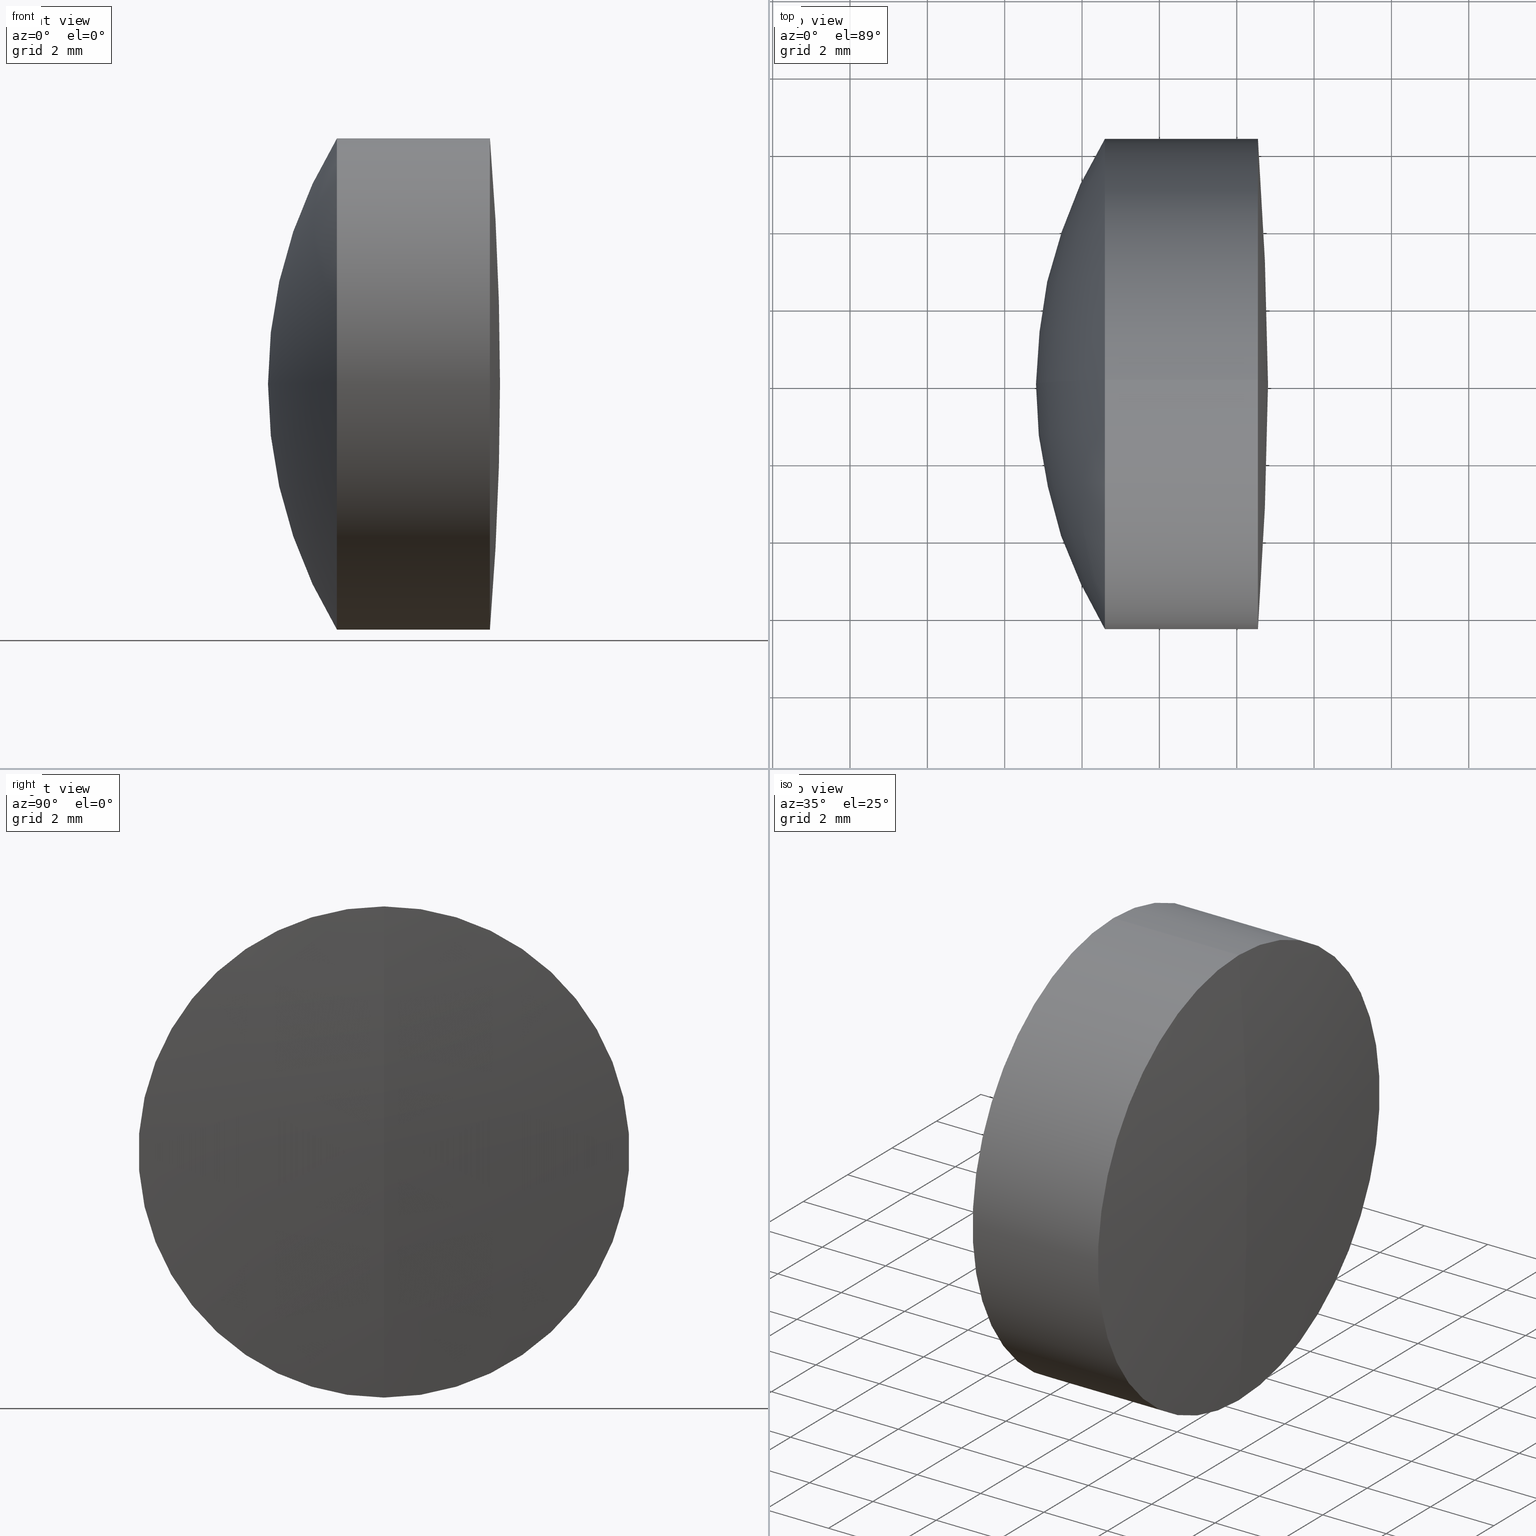
[diagram: canonical four-view strip — front | top / right | iso, engineering-drawing reading convention]
A machine part, canonical four-view strip (front | top / right | iso — engineering-drawing reading convention). The complete STEP part file that produces these views, byte-faithful:
ISO-10303-21;
HEADER;
FILE_DESCRIPTION (( 'STEP AP214' ),
    '1' );
FILE_NAME ('145109.STEP',
    '2019-05-29T08:06:37',
    ( 'user' ),
    ( '΢���й�' ),
    'SwSTEP 2.0',
    'SolidWorks 2016',
    '' );
FILE_SCHEMA (( 'AUTOMOTIVE_DESIGN' ));
ENDSEC;

DATA;
#1 = PRESENTATION_LAYER_ASSIGNMENT (  '', '', ( #13 ) ) ;
#2 = CARTESIAN_POINT ( 'NONE',  ( 272.5480355923398900, 0.0000000000000000000, 0.0000000000000000000 ) ) ;
#3 = EDGE_LOOP ( 'NONE', ( #149, #199, #21 ) ) ;
#4 = DIRECTION ( 'NONE',  ( 0.0000000000000000000, 0.0000000000000000000, 1.000000000000000000 ) ) ;
#5 = ORIENTED_EDGE ( 'NONE', *, *, #251, .T. ) ;
#6 = CIRCLE ( 'NONE', #218, 6.349999999999997000 ) ;
#7 = DIRECTION ( 'NONE',  ( 0.0000000000000000000, 0.0000000000000000000, -1.000000000000000000 ) ) ;
#8 = PRESENTATION_LAYER_ASSIGNMENT (  '', '', ( #345 ) ) ;
#9 = CIRCLE ( 'NONE', #308, 12.20000000000050000 ) ;
#10 = ORIENTED_EDGE ( 'NONE', *, *, #63, .F. ) ;
#11 =( NAMED_UNIT ( * ) SI_UNIT ( $, .STERADIAN. ) SOLID_ANGLE_UNIT ( ) );
#12 = FACE_OUTER_BOUND ( 'NONE', #194, .T. ) ;
#13 = STYLED_ITEM ( 'NONE', ( #88 ), #228 ) ;
#14 = VECTOR ( 'NONE', #337, 1000.000000000000000 ) ;
#15 = CARTESIAN_POINT ( 'NONE',  ( 260.7089566504702100, 0.0000000000000000000, -3.469446951953614200E-015 ) ) ;
#16 = COLOUR_RGB ( '',1.000000000000000000, 1.000000000000000000, 1.000000000000000000 ) ;
#17 = EDGE_CURVE ( 'NONE', #92, #322, #39, .T. ) ;
#18 = MECHANICAL_DESIGN_GEOMETRIC_PRESENTATION_REPRESENTATION (  '', ( #13 ), #147 ) ;
#19 = COLOUR_RGB ( '',1.000000000000000000, 1.000000000000000000, 1.000000000000000000 ) ;
#20 = UNCERTAINTY_MEASURE_WITH_UNIT (LENGTH_MEASURE( 1.000000000000000100E-005 ), #40, 'distance_accuracy_value', 'NONE');
#21 = ORIENTED_EDGE ( 'NONE', *, *, #210, .T. ) ;
#22 = FILL_AREA_STYLE ('',( #140 ) ) ;
#23 = CIRCLE ( 'NONE', #255, 6.349999999999996100 ) ;
#24 = CARTESIAN_POINT ( 'NONE',  ( 269.1964474457524300, 0.0000000000000000000, 0.0000000000000000000 ) ) ;
#25 = DIRECTION ( 'NONE',  ( 0.0000000000000000000, 0.0000000000000000000, 1.000000000000000000 ) ) ;
#26 = CARTESIAN_POINT ( 'NONE',  ( 269.1964474457524300, 0.0000000000000000000, 6.349999999999997000 ) ) ;
#27 = DIRECTION ( 'NONE',  ( 0.0000000000000000000, 1.000000000000000000, 0.0000000000000000000 ) ) ;
#28 = EDGE_CURVE ( 'NONE', #87, #33, #325, .T. ) ;
#29 = ORIENTED_EDGE ( 'NONE', *, *, #338, .F. ) ;
#30 = CARTESIAN_POINT ( 'NONE',  ( 279.0089566504702200, 0.0000000000000000000, -3.469447549560910600E-015 ) ) ;
#31 = EDGE_CURVE ( 'NONE', #125, #33, #180, .T. ) ;
#32 = ORIENTED_EDGE ( 'NONE', *, *, #242, .F. ) ;
#33 = VERTEX_POINT ( 'NONE', #49 ) ;
#34 = DIRECTION ( 'NONE',  ( 0.0000000000000000000, 0.0000000000000000000, 1.000000000000000000 ) ) ;
#35 =( GEOMETRIC_REPRESENTATION_CONTEXT ( 3 ) GLOBAL_UNCERTAINTY_ASSIGNED_CONTEXT ( ( #182 ) ) GLOBAL_UNIT_ASSIGNED_CONTEXT ( ( #334, #201, #11 ) ) REPRESENTATION_CONTEXT ( 'NONE', 'WORKASPACE' ) );
#36 = CARTESIAN_POINT ( 'NONE',  ( 124.5233095260452400, 7.776507174585689200E-016, -6.349999999999996100 ) ) ;
#37 = DIRECTION ( 'NONE',  ( 0.0000000000000000000, -1.000000000000000000, 0.0000000000000000000 ) ) ;
#38 = VECTOR ( 'NONE', #96, 1000.000000000000000 ) ;
#39 = CIRCLE ( 'NONE', #107, 6.349999999999996100 ) ;
#40 =( LENGTH_UNIT ( ) NAMED_UNIT ( * ) SI_UNIT ( .MILLI., .METRE. ) );
#41 = ADVANCED_FACE ( 'NONE', ( #281 ), #320, .T. ) ;
#42 = ADVANCED_FACE ( 'NONE', ( #204 ), #126, .T. ) ;
#43 = EDGE_CURVE ( 'NONE', #64, #163, #335, .T. ) ;
#44 = VECTOR ( 'NONE', #80, 1000.000000000000000 ) ;
#45 = CARTESIAN_POINT ( 'NONE',  ( 268.5917833294578300, 0.0000000000000000000, 0.0000000000000000000 ) ) ;
#46 = CYLINDRICAL_SURFACE ( 'NONE', #303, 6.349999999999996100 ) ;
#47 = EDGE_CURVE ( 'NONE', #134, #163, #129, .T. ) ;
#48 = MANIFOLD_SOLID_BREP ( '��ת1', #77 ) ;
#49 = CARTESIAN_POINT ( 'NONE',  ( 272.5480355923398900, 7.776507174585696100E-016, -6.350000000000002300 ) ) ;
#50 = ORIENTED_EDGE ( 'NONE', *, *, #209, .F. ) ;
#51 = DIRECTION ( 'NONE',  ( -1.000000000000000000, -0.0000000000000000000, -0.0000000000000000000 ) ) ;
#52 =( NAMED_UNIT ( * ) SI_UNIT ( $, .STERADIAN. ) SOLID_ANGLE_UNIT ( ) );
#53 = ORIENTED_EDGE ( 'NONE', *, *, #130, .T. ) ;
#54 = CARTESIAN_POINT ( 'NONE',  ( 195.4089566504702000, 0.0000000000000000000, 0.0000000000000000000 ) ) ;
#55 = ORIENTED_EDGE ( 'NONE', *, *, #146, .T. ) ;
#56 = DIRECTION ( 'NONE',  ( 0.0000000000000000000, 0.0000000000000000000, -1.000000000000000000 ) ) ;
#57 = CARTESIAN_POINT ( 'NONE',  ( 124.5233095260452400, 0.0000000000000000000, 0.0000000000000000000 ) ) ;
#58 = PRODUCT_RELATED_PRODUCT_CATEGORY ( 'part', '', ( #160 ) ) ;
#59 = SURFACE_STYLE_USAGE ( .BOTH. , #135 ) ;
#60 = EDGE_CURVE ( 'NONE', #248, #294, #330, .T. ) ;
#61 = DIRECTION ( 'NONE',  ( 0.0000000000000000000, 1.000000000000000000, 0.0000000000000000000 ) ) ;
#62 = DIRECTION ( 'NONE',  ( -0.0000000000000000000, 1.000000000000000000, 1.224646799147353200E-016 ) ) ;
#63 = EDGE_CURVE ( 'NONE', #200, #294, #9, .T. ) ;
#64 = VERTEX_POINT ( 'NONE', #186 ) ;
#65 = CARTESIAN_POINT ( 'NONE',  ( -0.5519199926577972300, 0.0000000000000000000, 0.0000000000000000000 ) ) ;
#66 = CARTESIAN_POINT ( 'NONE',  ( 269.1964474457524300, 7.776507174585689200E-016, -6.349999999999996100 ) ) ;
#67 = AXIS2_PLACEMENT_3D ( 'NONE', #158, #157, #154 ) ;
#68 = DIRECTION ( 'NONE',  ( -1.000000000000000000, -0.0000000000000000000, -0.0000000000000000000 ) ) ;
#69 = ADVANCED_FACE ( 'NONE', ( #148 ), #101, .T. ) ;
#70 = DIRECTION ( 'NONE',  ( 0.0000000000000000000, 1.000000000000000000, 0.0000000000000000000 ) ) ;
#71 = CIRCLE ( 'NONE', #290, 10.60000000000001600 ) ;
#72 = EDGE_LOOP ( 'NONE', ( #50, #113, #32 ) ) ;
#73 = SPHERICAL_SURFACE ( 'NONE', #117, 10.60000000000001600 ) ;
#74 = MECHANICAL_DESIGN_GEOMETRIC_PRESENTATION_REPRESENTATION (  '', ( #288 ), #173 ) ;
#75 = ORIENTED_EDGE ( 'NONE', *, *, #242, .T. ) ;
#76 = EDGE_CURVE ( 'NONE', #322, #248, #123, .T. ) ;
#77 = CLOSED_SHELL ( 'NONE', ( #42, #176, #124, #297, #69, #299 ) ) ;
#78 = EDGE_LOOP ( 'NONE', ( #153, #53, #301 ) ) ;
#79 = DIRECTION ( 'NONE',  ( 0.0000000000000000000, 0.0000000000000000000, 1.000000000000000000 ) ) ;
#80 = DIRECTION ( 'NONE',  ( -1.000000000000000000, -0.0000000000000000000, -0.0000000000000000000 ) ) ;
#81 = CARTESIAN_POINT ( 'NONE',  ( 268.5917833294578300, 7.776507174585689200E-016, -6.349999999999999600 ) ) ;
#82 = AXIS2_PLACEMENT_3D ( 'NONE', #215, #287, #262 ) ;
#83 = DIRECTION ( 'NONE',  ( 0.0000000000000000000, 0.0000000000000000000, 1.000000000000000000 ) ) ;
#84 = DIRECTION ( 'NONE',  ( 0.0000000000000000000, 0.0000000000000000000, 1.000000000000000000 ) ) ;
#85 = AXIS2_PLACEMENT_3D ( 'NONE', #2, #231, #111 ) ;
#86 = MANIFOLD_SOLID_BREP ( '��ת3', #223 ) ;
#87 = VERTEX_POINT ( 'NONE', #161 ) ;
#88 = PRESENTATION_STYLE_ASSIGNMENT (( #177 ) ) ;
#89 = CARTESIAN_POINT ( 'NONE',  ( 269.1964474457524300, 7.776507174585689200E-016, -6.350000000000000500 ) ) ;
#90 = APPLICATION_CONTEXT ( 'automotive_design' ) ;
#91 = DIRECTION ( 'NONE',  ( 0.0000000000000000000, -1.000000000000000000, 0.0000000000000000000 ) ) ;
#92 = VERTEX_POINT ( 'NONE', #289 ) ;
#93 = AXIS2_PLACEMENT_3D ( 'NONE', #321, #62, #141 ) ;
#94 = DIRECTION ( 'NONE',  ( -1.000000000000000000, -0.0000000000000000000, -0.0000000000000000000 ) ) ;
#95 = ADVANCED_FACE ( 'NONE', ( #239 ), #98, .F. ) ;
#96 = DIRECTION ( 'NONE',  ( -1.000000000000000000, -0.0000000000000000000, -0.0000000000000000000 ) ) ;
#97 = FILL_AREA_STYLE ('',( #236 ) ) ;
#98 = SPHERICAL_SURFACE ( 'NONE', #341, 10.60000000000001600 ) ;
#99 = CIRCLE ( 'NONE', #270, 6.349999999999996100 ) ;
#100 = EDGE_CURVE ( 'NONE', #33, #87, #293, .T. ) ;
#101 = CYLINDRICAL_SURFACE ( 'NONE', #235, 6.349999999999996100 ) ;
#102 = AXIS2_PLACEMENT_3D ( 'NONE', #254, #27, #276 ) ;
#103 = EDGE_LOOP ( 'NONE', ( #144, #266, #105 ) ) ;
#104 = EDGE_CURVE ( 'NONE', #64, #134, #71, .T. ) ;
#105 = ORIENTED_EDGE ( 'NONE', *, *, #47, .T. ) ;
#106 = LINE ( 'NONE', #213, #38 ) ;
#107 = AXIS2_PLACEMENT_3D ( 'NONE', #137, #94, #171 ) ;
#108 = CARTESIAN_POINT ( 'NONE',  ( 269.1964474457524300, 0.0000000000000000000, 0.0000000000000000000 ) ) ;
#109 = VERTEX_POINT ( 'NONE', #196 ) ;
#110 =( NAMED_UNIT ( * ) SI_UNIT ( $, .STERADIAN. ) SOLID_ANGLE_UNIT ( ) );
#111 = DIRECTION ( 'NONE',  ( 0.0000000000000000000, 0.0000000000000000000, 1.000000000000000000 ) ) ;
#112 = CARTESIAN_POINT ( 'NONE',  ( 272.5480355923398900, 0.0000000000000000000, 0.0000000000000000000 ) ) ;
#113 = ORIENTED_EDGE ( 'NONE', *, *, #155, .T. ) ;
#114 = AXIS2_PLACEMENT_3D ( 'NONE', #30, #285, #292 ) ;
#115 = CARTESIAN_POINT ( 'NONE',  ( 279.0089566504702200, 0.0000000000000000000, -3.469447549560910600E-015 ) ) ;
#116 = ORIENTED_EDGE ( 'NONE', *, *, #155, .F. ) ;
#117 = AXIS2_PLACEMENT_3D ( 'NONE', #184, #316, #84 ) ;
#118 = APPLICATION_PROTOCOL_DEFINITION ( 'draft international standard', 'automotive_design', 1998, #90 ) ;
#119 = ADVANCED_FACE ( 'NONE', ( #226 ), #167, .T. ) ;
#120 = EDGE_LOOP ( 'NONE', ( #219, #169, #317, #127 ) ) ;
#121 = CIRCLE ( 'NONE', #275, 10.60000000000001600 ) ;
#122 = PRESENTATION_LAYER_ASSIGNMENT (  '', '', ( #288 ) ) ;
#123 = LINE ( 'NONE', #36, #300 ) ;
#124 = ADVANCED_FACE ( 'NONE', ( #12 ), #159, .T. ) ;
#125 = VERTEX_POINT ( 'NONE', #136 ) ;
#126 = SPHERICAL_SURFACE ( 'NONE', #179, 10.60000000000001600 ) ;
#127 = ORIENTED_EDGE ( 'NONE', *, *, #146, .F. ) ;
#128 = DIRECTION ( 'NONE',  ( -0.0000000000000000000, 1.000000000000000000, 1.224646799147353200E-016 ) ) ;
#129 = CIRCLE ( 'NONE', #319, 6.349999999999997000 ) ;
#130 = EDGE_CURVE ( 'NONE', #248, #200, #229, .T. ) ;
#131 = CARTESIAN_POINT ( 'NONE',  ( 269.1964474457524300, 0.0000000000000000000, 0.0000000000000000000 ) ) ;
#132 = MECHANICAL_DESIGN_GEOMETRIC_PRESENTATION_REPRESENTATION (  '', ( #345 ), #206 ) ;
#133 = ORIENTED_EDGE ( 'NONE', *, *, #100, .T. ) ;
#134 = VERTEX_POINT ( 'NONE', #26 ) ;
#135 = SURFACE_SIDE_STYLE ('',( #139 ) ) ;
#136 = CARTESIAN_POINT ( 'NONE',  ( 272.8089566504702400, 0.0000000000000000000, 4.739383112700257000E-015 ) ) ;
#137 = CARTESIAN_POINT ( 'NONE',  ( 269.1964474457524300, 0.0000000000000000000, 0.0000000000000000000 ) ) ;
#138 = EDGE_CURVE ( 'NONE', #92, #200, #106, .T. ) ;
#139 = SURFACE_STYLE_FILL_AREA ( #343 ) ;
#140 = FILL_AREA_STYLE_COLOUR ( '', #16 ) ;
#141 = DIRECTION ( 'NONE',  ( 0.0000000000000000000, -1.224646799147353200E-016, 1.000000000000000000 ) ) ;
#142 = CARTESIAN_POINT ( 'NONE',  ( -0.5519199926577972300, 0.0000000000000000000, 0.0000000000000000000 ) ) ;
#143 = SURFACE_SIDE_STYLE ('',( #305 ) ) ;
#144 = ORIENTED_EDGE ( 'NONE', *, *, #43, .F. ) ;
#145 = SPHERICAL_SURFACE ( 'NONE', #67, 77.39999999999999100 ) ;
#146 = EDGE_CURVE ( 'NONE', #87, #134, #314, .T. ) ;
#147 =( GEOMETRIC_REPRESENTATION_CONTEXT ( 3 ) GLOBAL_UNCERTAINTY_ASSIGNED_CONTEXT ( ( #20 ) ) GLOBAL_UNIT_ASSIGNED_CONTEXT ( ( #40, #311, #52 ) ) REPRESENTATION_CONTEXT ( 'NONE', 'WORKASPACE' ) );
#148 = FACE_OUTER_BOUND ( 'NONE', #208, .T. ) ;
#149 = ORIENTED_EDGE ( 'NONE', *, *, #104, .F. ) ;
#150 = CIRCLE ( 'NONE', #312, 10.60000000000001600 ) ;
#151 = CARTESIAN_POINT ( 'NONE',  ( -0.5519199926577972300, 7.776507174585692200E-016, -6.349999999999999600 ) ) ;
#152 = FACE_OUTER_BOUND ( 'NONE', #227, .T. ) ;
#153 = ORIENTED_EDGE ( 'NONE', *, *, #60, .F. ) ;
#154 = DIRECTION ( 'NONE',  ( 0.0000000000000000000, 0.0000000000000000000, 1.000000000000000000 ) ) ;
#155 = EDGE_CURVE ( 'NONE', #109, #92, #150, .T. ) ;
#156 = DIRECTION ( 'NONE',  ( 0.0000000000000000000, 0.0000000000000000000, 1.000000000000000000 ) ) ;
#157 = DIRECTION ( 'NONE',  ( 0.0000000000000000000, 1.000000000000000000, 0.0000000000000000000 ) ) ;
#158 = CARTESIAN_POINT ( 'NONE',  ( 195.4089566504702000, 0.0000000000000000000, 0.0000000000000000000 ) ) ;
#159 = SPHERICAL_SURFACE ( 'NONE', #324, 12.20000000000050000 ) ;
#160 = PRODUCT ( '145109', '145109', '', ( #272 ) ) ;
#161 = CARTESIAN_POINT ( 'NONE',  ( 272.5480355923398900, 0.0000000000000000000, 6.350000000000002300 ) ) ;
#162 = DIRECTION ( 'NONE',  ( -1.000000000000000000, -0.0000000000000000000, -0.0000000000000000000 ) ) ;
#163 = VERTEX_POINT ( 'NONE', #89 ) ;
#164 = SPHERICAL_SURFACE ( 'NONE', #188, 10.60000000000001600 ) ;
#165 = SURFACE_STYLE_FILL_AREA ( #97 ) ;
#166 = DIRECTION ( 'NONE',  ( 0.0000000000000000000, 1.000000000000000000, 0.0000000000000000000 ) ) ;
#167 = CYLINDRICAL_SURFACE ( 'NONE', #333, 6.349999999999999600 ) ;
#168 = DIRECTION ( 'NONE',  ( 0.0000000000000000000, 0.0000000000000000000, 1.000000000000000000 ) ) ;
#169 = ORIENTED_EDGE ( 'NONE', *, *, #224, .T. ) ;
#170 = ADVANCED_FACE ( 'NONE', ( #203 ), #278, .T. ) ;
#171 = DIRECTION ( 'NONE',  ( 0.0000000000000000000, 0.0000000000000000000, 1.000000000000000000 ) ) ;
#172 = CARTESIAN_POINT ( 'NONE',  ( 260.7089566504702100, 0.0000000000000000000, -3.469446951953614200E-015 ) ) ;
#173 =( GEOMETRIC_REPRESENTATION_CONTEXT ( 3 ) GLOBAL_UNCERTAINTY_ASSIGNED_CONTEXT ( ( #225 ) ) GLOBAL_UNIT_ASSIGNED_CONTEXT ( ( #217, #253, #190 ) ) REPRESENTATION_CONTEXT ( 'NONE', 'WORKASPACE' ) );
#174 = ORIENTED_EDGE ( 'NONE', *, *, #76, .T. ) ;
#175 = AXIS2_PLACEMENT_3D ( 'NONE', #192, #267, #195 ) ;
#176 = ADVANCED_FACE ( 'NONE', ( #286 ), #46, .T. ) ;
#177 = SURFACE_STYLE_USAGE ( .BOTH. , #205 ) ;
#178 = DIRECTION ( 'NONE',  ( 0.0000000000000000000, 0.0000000000000000000, 1.000000000000000000 ) ) ;
#179 = AXIS2_PLACEMENT_3D ( 'NONE', #172, #70, #198 ) ;
#180 = CIRCLE ( 'NONE', #82, 77.39999999999999100 ) ;
#181 = ORIENTED_EDGE ( 'NONE', *, *, #100, .F. ) ;
#182 = UNCERTAINTY_MEASURE_WITH_UNIT (LENGTH_MEASURE( 1.000000000000000100E-005 ), #334, 'distance_accuracy_value', 'NONE');
#183 = DIRECTION ( 'NONE',  ( 0.0000000000000000000, -1.000000000000000000, 0.0000000000000000000 ) ) ;
#184 = CARTESIAN_POINT ( 'NONE',  ( 260.7089566504702100, 0.0000000000000000000, -3.469446951953614200E-015 ) ) ;
#185 = ORIENTED_EDGE ( 'NONE', *, *, #209, .T. ) ;
#186 = CARTESIAN_POINT ( 'NONE',  ( 271.3089566504702400, 0.0000000000000000000, -2.820384148405516000E-015 ) ) ;
#187 = CARTESIAN_POINT ( 'NONE',  ( 195.4089566504702000, 0.0000000000000000000, 0.0000000000000000000 ) ) ;
#188 = AXIS2_PLACEMENT_3D ( 'NONE', #216, #347, #79 ) ;
#189 = SPHERICAL_SURFACE ( 'NONE', #102, 12.20000000000050000 ) ;
#190 =( NAMED_UNIT ( * ) SI_UNIT ( $, .STERADIAN. ) SOLID_ANGLE_UNIT ( ) );
#191 = DIRECTION ( 'NONE',  ( 0.0000000000000000000, 0.0000000000000000000, 1.000000000000000000 ) ) ;
#192 = CARTESIAN_POINT ( 'NONE',  ( 268.5917833294578300, 0.0000000000000000000, 0.0000000000000000000 ) ) ;
#193 = DIRECTION ( 'NONE',  ( -1.000000000000000000, -0.0000000000000000000, -0.0000000000000000000 ) ) ;
#194 = EDGE_LOOP ( 'NONE', ( #250, #332, #10 ) ) ;
#195 = DIRECTION ( 'NONE',  ( 0.0000000000000000000, 0.0000000000000000000, 1.000000000000000000 ) ) ;
#196 = CARTESIAN_POINT ( 'NONE',  ( 271.3089566504702400, 0.0000000000000000000, -2.820384148405516000E-015 ) ) ;
#197 = DIRECTION ( 'NONE',  ( 1.000000000000000000, 0.0000000000000000000, 0.0000000000000000000 ) ) ;
#198 = DIRECTION ( 'NONE',  ( 0.0000000000000000000, 0.0000000000000000000, 1.000000000000000000 ) ) ;
#199 = ORIENTED_EDGE ( 'NONE', *, *, #43, .T. ) ;
#200 = VERTEX_POINT ( 'NONE', #211 ) ;
#201 =( NAMED_UNIT ( * ) PLANE_ANGLE_UNIT ( ) SI_UNIT ( $, .RADIAN. ) );
#202 = ORIENTED_EDGE ( 'NONE', *, *, #31, .F. ) ;
#203 = FACE_OUTER_BOUND ( 'NONE', #246, .T. ) ;
#204 = FACE_OUTER_BOUND ( 'NONE', #298, .T. ) ;
#205 = SURFACE_SIDE_STYLE ('',( #165 ) ) ;
#206 =( GEOMETRIC_REPRESENTATION_CONTEXT ( 3 ) GLOBAL_UNCERTAINTY_ASSIGNED_CONTEXT ( ( #295 ) ) GLOBAL_UNIT_ASSIGNED_CONTEXT ( ( #257, #346, #110 ) ) REPRESENTATION_CONTEXT ( 'NONE', 'WORKASPACE' ) );
#207 = DIRECTION ( 'NONE',  ( 0.0000000000000000000, 0.0000000000000000000, 1.000000000000000000 ) ) ;
#208 = EDGE_LOOP ( 'NONE', ( #234, #75, #336, #342 ) ) ;
#209 = EDGE_CURVE ( 'NONE', #109, #322, #121, .T. ) ;
#210 = EDGE_CURVE ( 'NONE', #163, #134, #6, .T. ) ;
#211 = CARTESIAN_POINT ( 'NONE',  ( 268.5917833294578300, 0.0000000000000000000, 6.349999999999996100 ) ) ;
#212 = FACE_OUTER_BOUND ( 'NONE', #103, .T. ) ;
#213 = CARTESIAN_POINT ( 'NONE',  ( 124.5233095260452400, 0.0000000000000000000, 6.349999999999996100 ) ) ;
#214 = FACE_OUTER_BOUND ( 'NONE', #78, .T. ) ;
#215 = CARTESIAN_POINT ( 'NONE',  ( 195.4089566504702000, 0.0000000000000000000, 0.0000000000000000000 ) ) ;
#216 = CARTESIAN_POINT ( 'NONE',  ( 260.7089566504702100, 0.0000000000000000000, -3.469446951953614200E-015 ) ) ;
#217 =( LENGTH_UNIT ( ) NAMED_UNIT ( * ) SI_UNIT ( .MILLI., .METRE. ) );
#218 = AXIS2_PLACEMENT_3D ( 'NONE', #108, #193, #306 ) ;
#219 = ORIENTED_EDGE ( 'NONE', *, *, #28, .T. ) ;
#220 = DIRECTION ( 'NONE',  ( 0.0000000000000000000, -1.000000000000000000, 0.0000000000000000000 ) ) ;
#221 = PRESENTATION_STYLE_ASSIGNMENT (( #59 ) ) ;
#222 = PRODUCT_DEFINITION_CONTEXT ( 'detailed design', #296, 'design' ) ;
#223 = CLOSED_SHELL ( 'NONE', ( #302, #119, #95, #291, #41, #170 ) ) ;
#224 = EDGE_CURVE ( 'NONE', #33, #163, #264, .T. ) ;
#225 = UNCERTAINTY_MEASURE_WITH_UNIT (LENGTH_MEASURE( 1.000000000000000100E-005 ), #217, 'distance_accuracy_value', 'NONE');
#226 = FACE_OUTER_BOUND ( 'NONE', #120, .T. ) ;
#227 = EDGE_LOOP ( 'NONE', ( #309, #240, #282 ) ) ;
#228 = ADVANCED_BREP_SHAPE_REPRESENTATION ( '145109', ( #48, #86, #230 ), #35 ) ;
#229 = CIRCLE ( 'NONE', #175, 6.349999999999996100 ) ;
#230 = AXIS2_PLACEMENT_3D ( 'NONE', #307, #191, #197 ) ;
#231 = DIRECTION ( 'NONE',  ( -1.000000000000000000, -0.0000000000000000000, -0.0000000000000000000 ) ) ;
#232 = FILL_AREA_STYLE_COLOUR ( '', #19 ) ;
#233 = DIRECTION ( 'NONE',  ( 0.0000000000000000000, 0.0000000000000000000, 1.000000000000000000 ) ) ;
#234 = ORIENTED_EDGE ( 'NONE', *, *, #76, .F. ) ;
#235 = AXIS2_PLACEMENT_3D ( 'NONE', #247, #68, #156 ) ;
#236 = FILL_AREA_STYLE_COLOUR ( '', #304 ) ;
#237 = PRODUCT_DEFINITION ( 'δ֪', '', #249, #222 ) ;
#238 = CARTESIAN_POINT ( 'NONE',  ( 260.7089566504702100, 0.0000000000000000000, -3.469446951953614200E-015 ) ) ;
#239 = FACE_OUTER_BOUND ( 'NONE', #3, .T. ) ;
#240 = ORIENTED_EDGE ( 'NONE', *, *, #31, .T. ) ;
#241 = DIRECTION ( 'NONE',  ( -1.000000000000000000, -0.0000000000000000000, -0.0000000000000000000 ) ) ;
#242 = EDGE_CURVE ( 'NONE', #322, #92, #23, .T. ) ;
#243 = DIRECTION ( 'NONE',  ( -1.000000000000000000, -0.0000000000000000000, -0.0000000000000000000 ) ) ;
#244 = PRESENTATION_STYLE_ASSIGNMENT (( #310 ) ) ;
#245 = AXIS2_PLACEMENT_3D ( 'NONE', #54, #220, #339 ) ;
#246 = EDGE_LOOP ( 'NONE', ( #202, #5, #181 ) ) ;
#247 = CARTESIAN_POINT ( 'NONE',  ( 124.5233095260452400, 0.0000000000000000000, 0.0000000000000000000 ) ) ;
#248 = VERTEX_POINT ( 'NONE', #81 ) ;
#249 = PRODUCT_DEFINITION_FORMATION_WITH_SPECIFIED_SOURCE ( '�κ�', '', #160, .NOT_KNOWN. ) ;
#250 = ORIENTED_EDGE ( 'NONE', *, *, #338, .T. ) ;
#251 = EDGE_CURVE ( 'NONE', #125, #87, #284, .T. ) ;
#252 = ORIENTED_EDGE ( 'NONE', *, *, #210, .F. ) ;
#253 =( NAMED_UNIT ( * ) PLANE_ANGLE_UNIT ( ) SI_UNIT ( $, .RADIAN. ) );
#254 = CARTESIAN_POINT ( 'NONE',  ( 279.0089566504702200, 0.0000000000000000000, -3.469447549560910600E-015 ) ) ;
#255 = AXIS2_PLACEMENT_3D ( 'NONE', #131, #162, #233 ) ;
#256 = PRODUCT_DEFINITION_SHAPE ( 'NONE', 'NONE',  #237 ) ;
#257 =( LENGTH_UNIT ( ) NAMED_UNIT ( * ) SI_UNIT ( .MILLI., .METRE. ) );
#258 = CARTESIAN_POINT ( 'NONE',  ( 266.8089566504697200, 0.0000000000000000000, -2.722413002080994400E-015 ) ) ;
#259 = CARTESIAN_POINT ( 'NONE',  ( 260.7089566504702100, 0.0000000000000000000, -3.469446951953614200E-015 ) ) ;
#260 = DIRECTION ( 'NONE',  ( 0.0000000000000000000, 1.000000000000000000, 0.0000000000000000000 ) ) ;
#261 = ORIENTED_EDGE ( 'NONE', *, *, #17, .T. ) ;
#262 = DIRECTION ( 'NONE',  ( 0.0000000000000000000, -1.224646799147353500E-016, 1.000000000000000000 ) ) ;
#263 = EDGE_LOOP ( 'NONE', ( #261, #174, #29, #271 ) ) ;
#264 = LINE ( 'NONE', #151, #14 ) ;
#265 = CARTESIAN_POINT ( 'NONE',  ( 279.0089566504702200, 0.0000000000000000000, -3.469447549560910600E-015 ) ) ;
#266 = ORIENTED_EDGE ( 'NONE', *, *, #104, .T. ) ;
#267 = DIRECTION ( 'NONE',  ( -1.000000000000000000, -0.0000000000000000000, -0.0000000000000000000 ) ) ;
#268 = DIRECTION ( 'NONE',  ( 0.0000000000000000000, -1.224646799147353200E-016, 1.000000000000000000 ) ) ;
#269 = ORIENTED_EDGE ( 'NONE', *, *, #17, .F. ) ;
#270 = AXIS2_PLACEMENT_3D ( 'NONE', #45, #328, #178 ) ;
#271 = ORIENTED_EDGE ( 'NONE', *, *, #138, .F. ) ;
#272 = PRODUCT_CONTEXT ( 'NONE', #90, 'mechanical' ) ;
#273 = AXIS2_PLACEMENT_3D ( 'NONE', #112, #243, #34 ) ;
#274 = DIRECTION ( 'NONE',  ( -1.000000000000000000, -0.0000000000000000000, -0.0000000000000000000 ) ) ;
#275 = AXIS2_PLACEMENT_3D ( 'NONE', #15, #128, #268 ) ;
#276 = DIRECTION ( 'NONE',  ( 0.0000000000000000000, 0.0000000000000000000, 1.000000000000000000 ) ) ;
#277 = EDGE_LOOP ( 'NONE', ( #326, #133, #55, #252 ) ) ;
#278 = SPHERICAL_SURFACE ( 'NONE', #283, 77.39999999999999100 ) ;
#279 = DIRECTION ( 'NONE',  ( -1.000000000000000000, -0.0000000000000000000, -0.0000000000000000000 ) ) ;
#280 = CARTESIAN_POINT ( 'NONE',  ( 260.7089566504702100, 0.0000000000000000000, -3.469446951953614200E-015 ) ) ;
#281 = FACE_OUTER_BOUND ( 'NONE', #277, .T. ) ;
#282 = ORIENTED_EDGE ( 'NONE', *, *, #28, .F. ) ;
#283 = AXIS2_PLACEMENT_3D ( 'NONE', #187, #260, #25 ) ;
#284 = CIRCLE ( 'NONE', #245, 77.39999999999999100 ) ;
#285 = DIRECTION ( 'NONE',  ( -0.0000000000000000000, 1.000000000000000000, 1.224646799147353200E-016 ) ) ;
#286 = FACE_OUTER_BOUND ( 'NONE', #263, .T. ) ;
#287 = DIRECTION ( 'NONE',  ( -0.0000000000000000000, 1.000000000000000000, 1.224646799147353200E-016 ) ) ;
#288 = STYLED_ITEM ( 'NONE', ( #244 ), #48 ) ;
#289 = CARTESIAN_POINT ( 'NONE',  ( 269.1964474457524300, 0.0000000000000000000, 6.349999999999996100 ) ) ;
#290 = AXIS2_PLACEMENT_3D ( 'NONE', #259, #183, #56 ) ;
#291 = ADVANCED_FACE ( 'NONE', ( #212 ), #73, .F. ) ;
#292 = DIRECTION ( 'NONE',  ( 0.0000000000000000000, -1.224646799147353200E-016, 1.000000000000000000 ) ) ;
#293 = CIRCLE ( 'NONE', #85, 6.350000000000002300 ) ;
#294 = VERTEX_POINT ( 'NONE', #258 ) ;
#295 = UNCERTAINTY_MEASURE_WITH_UNIT (LENGTH_MEASURE( 1.000000000000000100E-005 ), #257, 'distance_accuracy_value', 'NONE');
#296 = APPLICATION_CONTEXT ( 'automotive_design' ) ;
#297 = ADVANCED_FACE ( 'NONE', ( #214 ), #189, .T. ) ;
#298 = EDGE_LOOP ( 'NONE', ( #116, #185, #269 ) ) ;
#299 = ADVANCED_FACE ( 'NONE', ( #313 ), #164, .T. ) ;
#300 = VECTOR ( 'NONE', #344, 1000.000000000000000 ) ;
#301 = ORIENTED_EDGE ( 'NONE', *, *, #63, .T. ) ;
#302 = ADVANCED_FACE ( 'NONE', ( #152 ), #145, .T. ) ;
#303 = AXIS2_PLACEMENT_3D ( 'NONE', #57, #274, #207 ) ;
#304 = COLOUR_RGB ( '',1.000000000000000000, 1.000000000000000000, 1.000000000000000000 ) ;
#305 = SURFACE_STYLE_FILL_AREA ( #22 ) ;
#306 = DIRECTION ( 'NONE',  ( 0.0000000000000000000, 0.0000000000000000000, 1.000000000000000000 ) ) ;
#307 = CARTESIAN_POINT ( 'NONE',  ( 0.0000000000000000000, 0.0000000000000000000, 0.0000000000000000000 ) ) ;
#308 = AXIS2_PLACEMENT_3D ( 'NONE', #265, #91, #323 ) ;
#309 = ORIENTED_EDGE ( 'NONE', *, *, #251, .F. ) ;
#310 = SURFACE_STYLE_USAGE ( .BOTH. , #143 ) ;
#311 =( NAMED_UNIT ( * ) PLANE_ANGLE_UNIT ( ) SI_UNIT ( $, .RADIAN. ) );
#312 = AXIS2_PLACEMENT_3D ( 'NONE', #238, #37, #7 ) ;
#313 = FACE_OUTER_BOUND ( 'NONE', #72, .T. ) ;
#314 = LINE ( 'NONE', #315, #44 ) ;
#315 = CARTESIAN_POINT ( 'NONE',  ( -0.5519199926577972300, 0.0000000000000000000, 6.349999999999999600 ) ) ;
#316 = DIRECTION ( 'NONE',  ( 0.0000000000000000000, 1.000000000000000000, 0.0000000000000000000 ) ) ;
#317 = ORIENTED_EDGE ( 'NONE', *, *, #47, .F. ) ;
#318 = DIRECTION ( 'NONE',  ( 0.0000000000000000000, 0.0000000000000000000, 1.000000000000000000 ) ) ;
#319 = AXIS2_PLACEMENT_3D ( 'NONE', #24, #279, #83 ) ;
#320 = CYLINDRICAL_SURFACE ( 'NONE', #331, 6.349999999999999600 ) ;
#321 = CARTESIAN_POINT ( 'NONE',  ( 260.7089566504702100, 0.0000000000000000000, -3.469446951953614200E-015 ) ) ;
#322 = VERTEX_POINT ( 'NONE', #66 ) ;
#323 = DIRECTION ( 'NONE',  ( 0.0000000000000000000, 0.0000000000000000000, -1.000000000000000000 ) ) ;
#324 = AXIS2_PLACEMENT_3D ( 'NONE', #115, #61, #168 ) ;
#325 = CIRCLE ( 'NONE', #273, 6.350000000000002300 ) ;
#326 = ORIENTED_EDGE ( 'NONE', *, *, #224, .F. ) ;
#327 = SHAPE_DEFINITION_REPRESENTATION ( #256, #228 ) ;
#328 = DIRECTION ( 'NONE',  ( -1.000000000000000000, -0.0000000000000000000, -0.0000000000000000000 ) ) ;
#329 = APPLICATION_PROTOCOL_DEFINITION ( 'draft international standard', 'automotive_design', 1998, #296 ) ;
#330 = CIRCLE ( 'NONE', #114, 12.20000000000050000 ) ;
#331 = AXIS2_PLACEMENT_3D ( 'NONE', #142, #51, #4 ) ;
#332 = ORIENTED_EDGE ( 'NONE', *, *, #60, .T. ) ;
#333 = AXIS2_PLACEMENT_3D ( 'NONE', #65, #241, #318 ) ;
#334 =( LENGTH_UNIT ( ) NAMED_UNIT ( * ) SI_UNIT ( .MILLI., .METRE. ) );
#335 = CIRCLE ( 'NONE', #93, 10.60000000000001600 ) ;
#336 = ORIENTED_EDGE ( 'NONE', *, *, #138, .T. ) ;
#337 = DIRECTION ( 'NONE',  ( -1.000000000000000000, -0.0000000000000000000, -0.0000000000000000000 ) ) ;
#338 = EDGE_CURVE ( 'NONE', #200, #248, #99, .T. ) ;
#339 = DIRECTION ( 'NONE',  ( 0.0000000000000000000, 0.0000000000000000000, -1.000000000000000000 ) ) ;
#340 = DIRECTION ( 'NONE',  ( 0.0000000000000000000, 0.0000000000000000000, 1.000000000000000000 ) ) ;
#341 = AXIS2_PLACEMENT_3D ( 'NONE', #280, #166, #340 ) ;
#342 = ORIENTED_EDGE ( 'NONE', *, *, #130, .F. ) ;
#343 = FILL_AREA_STYLE ('',( #232 ) ) ;
#344 = DIRECTION ( 'NONE',  ( -1.000000000000000000, -0.0000000000000000000, -0.0000000000000000000 ) ) ;
#345 = STYLED_ITEM ( 'NONE', ( #221 ), #86 ) ;
#346 =( NAMED_UNIT ( * ) PLANE_ANGLE_UNIT ( ) SI_UNIT ( $, .RADIAN. ) );
#347 = DIRECTION ( 'NONE',  ( 0.0000000000000000000, 1.000000000000000000, 0.0000000000000000000 ) ) ;
ENDSEC;
END-ISO-10303-21;
